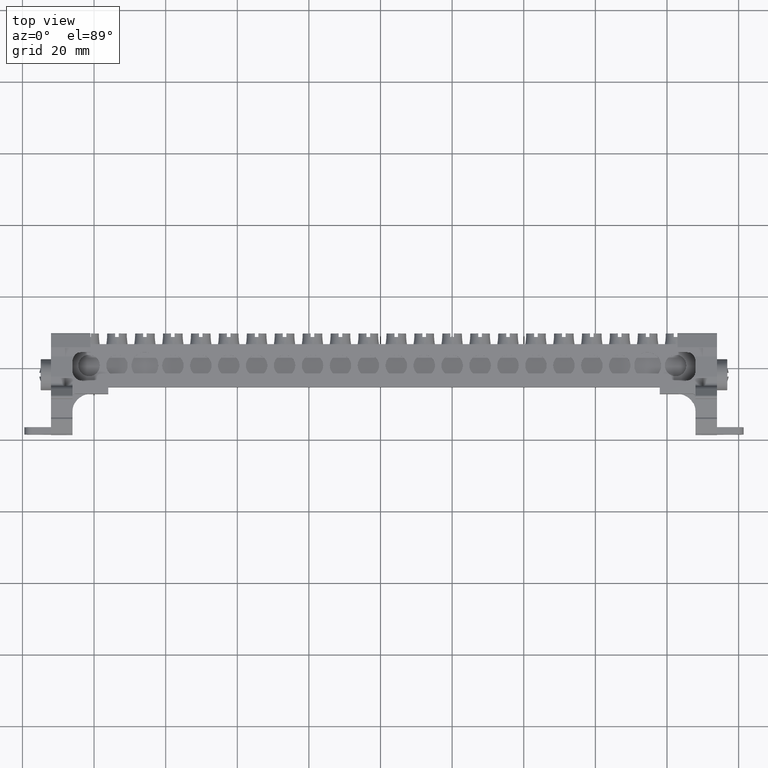
[diagram: clean part render]
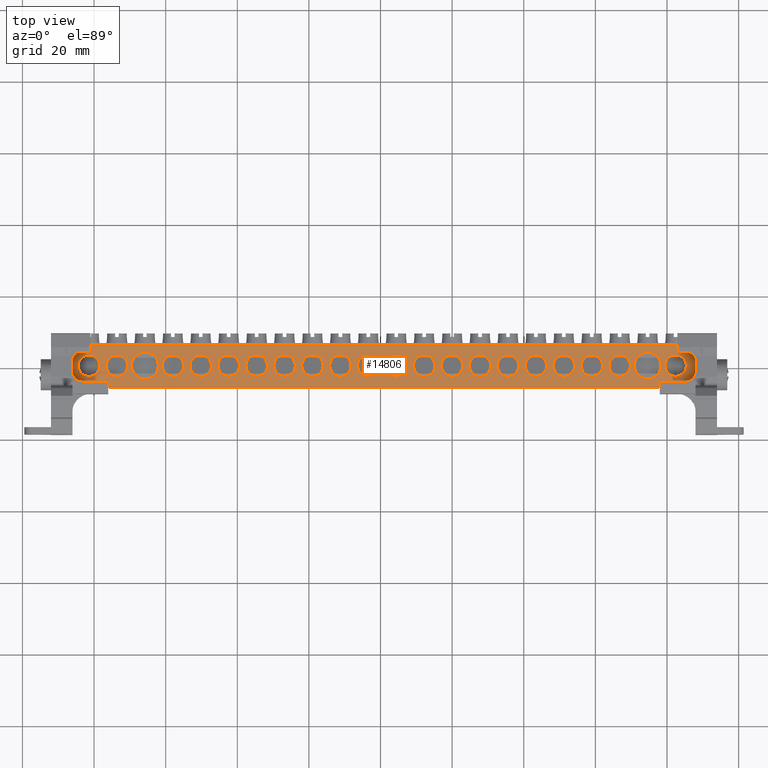
[diagram: same view with one face highlighted and labeled with its STEP entity id]
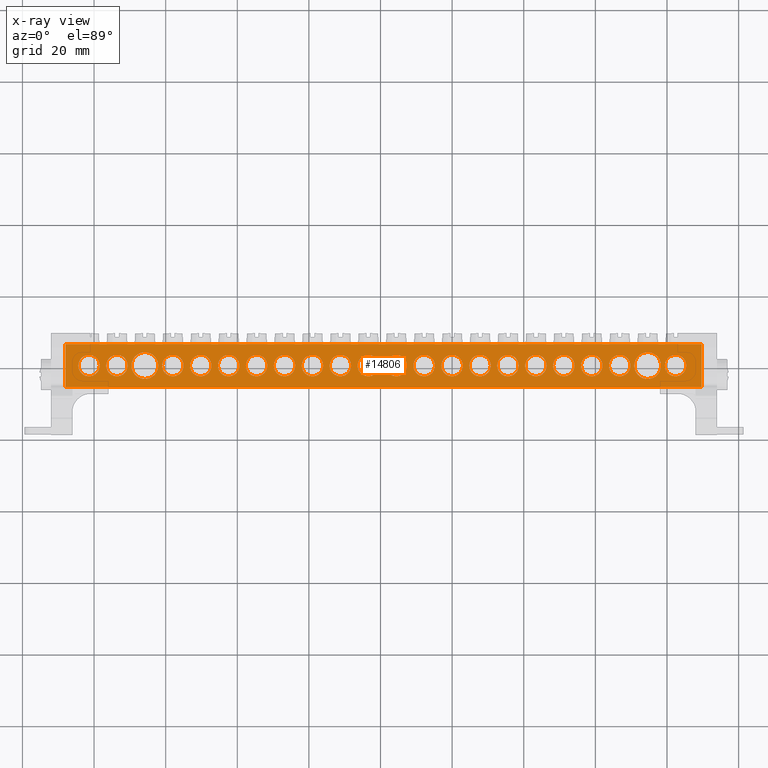
[diagram: x-ray of the same camera — body ghosted, the highlighted face saturated]
A machine part, top view. The second image highlights one B-rep face of the part: STEP entity #14806.
The next image is the same camera in x-ray: the body ghosted, the highlighted face saturated — about 0% of this face is hidden behind the body in this view.
In plain terms, the highlighted planar face has unit normal (0, 0, -1).
Its self-contained STEP definition (entity closure, byte-faithful):
#2279 = EDGE_LOOP ( 'NONE', ( #16498, #16490 ) ) ;
#2281 = EDGE_LOOP ( 'NONE', ( #16513, #16504 ) ) ;
#2284 = EDGE_LOOP ( 'NONE', ( #16525, #16521 ) ) ;
#2286 = EDGE_LOOP ( 'NONE', ( #16435, #16483 ) ) ;
#2288 = EDGE_LOOP ( 'NONE', ( #16488, #16503 ) ) ;
#2290 = EDGE_LOOP ( 'NONE', ( #16477, #16496 ) ) ;
#2291 = EDGE_LOOP ( 'NONE', ( #16546, #16491, #16533, #16518, #16538, #16515, #16523, #16520 ) ) ;
#2292 = EDGE_LOOP ( 'NONE', ( #16499, #16437 ) ) ;
#2294 = EDGE_LOOP ( 'NONE', ( #16508, #16516 ) ) ;
#2297 = EDGE_LOOP ( 'NONE', ( #16436, #16438 ) ) ;
#2300 = EDGE_LOOP ( 'NONE', ( #16442, #16475 ) ) ;
#2301 = EDGE_LOOP ( 'NONE', ( #16489, #16553 ) ) ;
#2302 = EDGE_LOOP ( 'NONE', ( #16507, #16541 ) ) ;
#2305 = EDGE_LOOP ( 'NONE', ( #16497, #16485 ) ) ;
#2320 = EDGE_LOOP ( 'NONE', ( #16456, #16505 ) ) ;
#2322 = EDGE_LOOP ( 'NONE', ( #16487, #16532 ) ) ;
#2324 = EDGE_LOOP ( 'NONE', ( #16534, #16444 ) ) ;
#2325 = EDGE_LOOP ( 'NONE', ( #16480, #16540 ) ) ;
#2328 = EDGE_LOOP ( 'NONE', ( #16439, #16528 ) ) ;
#2329 = EDGE_LOOP ( 'NONE', ( #16502, #16517 ) ) ;
#2330 = EDGE_LOOP ( 'NONE', ( #16506, #16484 ) ) ;
#2332 = EDGE_LOOP ( 'NONE', ( #16470, #16539 ) ) ;
#2334 = EDGE_LOOP ( 'NONE', ( #16527, #16492 ) ) ;
#3349 = FACE_BOUND ( 'NONE', #2329, .T. ) ;
#3350 = FACE_BOUND ( 'NONE', #2292, .T. ) ;
#3354 = FACE_BOUND ( 'NONE', #2325, .T. ) ;
#3355 = FACE_BOUND ( 'NONE', #2320, .T. ) ;
#3357 = FACE_BOUND ( 'NONE', #2305, .T. ) ;
#3359 = FACE_BOUND ( 'NONE', #2284, .T. ) ;
#3363 = DIRECTION ( 'NONE',  ( 0.0000000000000000000, 0.0000000000000000000, -1.000000000000000000 ) ) ;
#3366 = FACE_BOUND ( 'NONE', #2294, .T. ) ;
#3368 = FACE_BOUND ( 'NONE', #2301, .T. ) ;
#3370 = FACE_BOUND ( 'NONE', #2288, .T. ) ;
#3389 = FACE_BOUND ( 'NONE', #2332, .T. ) ;
#3390 = FACE_BOUND ( 'NONE', #2281, .T. ) ;
#3392 = FACE_BOUND ( 'NONE', #2286, .T. ) ;
#3394 = CARTESIAN_POINT ( 'NONE',  ( -90.10539649368639900, -33.46391012921964900, 99.25723811290720300 ) ) ;
#3399 = FACE_BOUND ( 'NONE', #2290, .T. ) ;
#3402 = FACE_BOUND ( 'NONE', #2279, .T. ) ;
#3404 = FACE_BOUND ( 'NONE', #2302, .T. ) ;
#3411 = FACE_BOUND ( 'NONE', #2300, .T. ) ;
#3418 = FACE_BOUND ( 'NONE', #2328, .T. ) ;
#3420 = FACE_BOUND ( 'NONE', #2330, .T. ) ;
#3421 = FACE_BOUND ( 'NONE', #2334, .T. ) ;
#3424 = FACE_BOUND ( 'NONE', #2324, .T. ) ;
#3426 = DIRECTION ( 'NONE',  ( -1.000000000000000000, 0.0000000000000000000, -0.0000000000000000000 ) ) ;
#3430 = FACE_BOUND ( 'NONE', #2322, .T. ) ;
#3432 = FACE_BOUND ( 'NONE', #2297, .T. ) ;
#3433 = PLANE ( 'NONE',  #29792 ) ;
#3437 = FACE_OUTER_BOUND ( 'NONE', #2291, .T. ) ;
#4094 = DIRECTION ( 'NONE',  ( 0.0000000000000000000, 0.0000000000000000000, 1.000000000000000000 ) ) ;
#4099 = CARTESIAN_POINT ( 'NONE',  ( -201.4053964936864200, -39.46391012921964900, 99.25723811290720300 ) ) ;
#4123 = DIRECTION ( 'NONE',  ( 1.000000000000000000, 0.0000000000000000000, 0.0000000000000000000 ) ) ;
#4130 = CARTESIAN_POINT ( 'NONE',  ( -68.80539649368640200, -39.46391012921964900, 99.25723811290720300 ) ) ;
#4134 = CARTESIAN_POINT ( 'NONE',  ( -193.6053964936864100, -39.46391012921964900, 99.25723811290720300 ) ) ;
#4138 = DIRECTION ( 'NONE',  ( -1.000000000000000000, 0.0000000000000000000, 0.0000000000000000000 ) ) ;
#4142 = DIRECTION ( 'NONE',  ( 0.0000000000000000000, 0.0000000000000000000, 1.000000000000000000 ) ) ;
#4154 = DIRECTION ( 'NONE',  ( 0.0000000000000000000, 0.0000000000000000000, 1.000000000000000000 ) ) ;
#4178 = DIRECTION ( 'NONE',  ( 1.000000000000000000, 0.0000000000000000000, 0.0000000000000000000 ) ) ;
#4283 = DIRECTION ( 'NONE',  ( 0.0000000000000000000, 0.0000000000000000000, 1.000000000000000000 ) ) ;
#4303 = CARTESIAN_POINT ( 'NONE',  ( -185.8053964936863700, -39.46391012921964900, 99.25723811290720300 ) ) ;
#4322 = CARTESIAN_POINT ( 'NONE',  ( -45.40539649368639600, -39.46391012921964900, 99.25723811290720300 ) ) ;
#4328 = DIRECTION ( 'NONE',  ( 0.0000000000000000000, 0.0000000000000000000, 1.000000000000000000 ) ) ;
#4333 = DIRECTION ( 'NONE',  ( 1.000000000000000000, 0.0000000000000000000, 0.0000000000000000000 ) ) ;
#4341 = DIRECTION ( 'NONE',  ( 1.000000000000000000, 0.0000000000000000000, 0.0000000000000000000 ) ) ;
#4352 = DIRECTION ( 'NONE',  ( 0.0000000000000000000, 0.0000000000000000000, 1.000000000000000000 ) ) ;
#4373 = CARTESIAN_POINT ( 'NONE',  ( -61.00539649368639800, -39.46391012921964900, 99.25723811290720300 ) ) ;
#4403 = DIRECTION ( 'NONE',  ( 0.0000000000000000000, 0.0000000000000000000, 1.000000000000000000 ) ) ;
#4405 = DIRECTION ( 'NONE',  ( -1.000000000000000000, 0.0000000000000000000, 0.0000000000000000000 ) ) ;
#4408 = CARTESIAN_POINT ( 'NONE',  ( -178.0053964936864500, -39.46391012921964900, 99.25723811290720300 ) ) ;
#4410 = DIRECTION ( 'NONE',  ( 0.0000000000000000000, 0.0000000000000000000, 1.000000000000000000 ) ) ;
#4412 = DIRECTION ( 'NONE',  ( 1.000000000000000000, 0.0000000000000000000, 0.0000000000000000000 ) ) ;
#4425 = CARTESIAN_POINT ( 'NONE',  ( -37.60539649368644200, -39.46391012921964900, 99.25723811290720300 ) ) ;
#4444 = DIRECTION ( 'NONE',  ( -1.000000000000000000, 0.0000000000000000000, 0.0000000000000000000 ) ) ;
#5112 = EDGE_CURVE ( 'NONE', #6999, #7017, #5782, .T. ) ;
#5113 = EDGE_CURVE ( 'NONE', #7057, #7065, #5812, .T. ) ;
#5114 = EDGE_CURVE ( 'NONE', #7063, #7062, #5796, .T. ) ;
#5121 = EDGE_CURVE ( 'NONE', #7166, #7116, #5853, .T. ) ;
#5122 = EDGE_CURVE ( 'NONE', #6967, #6969, #5833, .T. ) ;
#5126 = EDGE_CURVE ( 'NONE', #7124, #7112, #5839, .T. ) ;
#5128 = EDGE_CURVE ( 'NONE', #6994, #7077, #5856, .T. ) ;
#5137 = EDGE_CURVE ( 'NONE', #12282, #12367, #14393, .T. ) ;
#5144 = EDGE_CURVE ( 'NONE', #12351, #12382, #14411, .T. ) ;
#5146 = EDGE_CURVE ( 'NONE', #6992, #7003, #5849, .T. ) ;
#5152 = EDGE_CURVE ( 'NONE', #7183, #6990, #5896, .T. ) ;
#5155 = EDGE_CURVE ( 'NONE', #12398, #12351, #14433, .T. ) ;
#5156 = EDGE_CURVE ( 'NONE', #7016, #6995, #5898, .T. ) ;
#5189 = EDGE_CURVE ( 'NONE', #12349, #12283, #26841, .T. ) ;
#5782 = CIRCLE ( 'NONE', #5810, 3.000000000000002700 ) ;
#5796 = CIRCLE ( 'NONE', #5801, 3.750000000000003600 ) ;
#5801 = AXIS2_PLACEMENT_3D ( 'NONE', #14326, #14327, #14328 ) ;
#5802 = AXIS2_PLACEMENT_3D ( 'NONE', #14322, #14324, #14325 ) ;
#5810 = AXIS2_PLACEMENT_3D ( 'NONE', #14307, #14309, #14323 ) ;
#5812 = CIRCLE ( 'NONE', #5802, 3.000000000000002700 ) ;
#5824 = AXIS2_PLACEMENT_3D ( 'NONE', #14351, #14352, #14348 ) ;
#5833 = CIRCLE ( 'NONE', #5877, 3.000000000000002700 ) ;
#5839 = CIRCLE ( 'NONE', #5852, 3.000000000000002700 ) ;
#5842 = AXIS2_PLACEMENT_3D ( 'NONE', #14372, #14357, #14373 ) ;
#5849 = CIRCLE ( 'NONE', #5875, 3.000000000000002700 ) ;
#5852 = AXIS2_PLACEMENT_3D ( 'NONE', #14365, #14370, #14354 ) ;
#5853 = CIRCLE ( 'NONE', #5824, 3.000000000000002700 ) ;
#5856 = CIRCLE ( 'NONE', #5842, 3.000000000000002700 ) ;
#5858 = VECTOR ( 'NONE', #14412, 1000.000000000000000 ) ;
#5863 = VECTOR ( 'NONE', #14394, 1000.000000000000000 ) ;
#5875 = AXIS2_PLACEMENT_3D ( 'NONE', #14424, #14404, #14405 ) ;
#5877 = AXIS2_PLACEMENT_3D ( 'NONE', #14343, #14344, #14364 ) ;
#5894 = VECTOR ( 'NONE', #26835, 1000.000000000000000 ) ;
#5896 = CIRCLE ( 'NONE', #5902, 3.000000000000002700 ) ;
#5898 = CIRCLE ( 'NONE', #5908, 3.000000000000002700 ) ;
#5902 = AXIS2_PLACEMENT_3D ( 'NONE', #14459, #14449, #14452 ) ;
#5908 = AXIS2_PLACEMENT_3D ( 'NONE', #14457, #14438, #14440 ) ;
#5923 = VECTOR ( 'NONE', #14436, 1000.000000000000000 ) ;
#6927 = VERTEX_POINT ( 'NONE', #9805 ) ;
#6928 = VERTEX_POINT ( 'NONE', #9861 ) ;
#6932 = VERTEX_POINT ( 'NONE', #9827 ) ;
#6956 = VERTEX_POINT ( 'NONE', #9927 ) ;
#6966 = VERTEX_POINT ( 'NONE', #9939 ) ;
#6967 = VERTEX_POINT ( 'NONE', #9933 ) ;
#6969 = VERTEX_POINT ( 'NONE', #9914 ) ;
#6972 = VERTEX_POINT ( 'NONE', #9930 ) ;
#6978 = VERTEX_POINT ( 'NONE', #9906 ) ;
#6980 = VERTEX_POINT ( 'NONE', #9932 ) ;
#6985 = VERTEX_POINT ( 'NONE', #9938 ) ;
#6986 = VERTEX_POINT ( 'NONE', #9934 ) ;
#6988 = VERTEX_POINT ( 'NONE', #9945 ) ;
#6990 = VERTEX_POINT ( 'NONE', #9953 ) ;
#6991 = VERTEX_POINT ( 'NONE', #9917 ) ;
#6992 = VERTEX_POINT ( 'NONE', #9911 ) ;
#6994 = VERTEX_POINT ( 'NONE', #9899 ) ;
#6995 = VERTEX_POINT ( 'NONE', #9954 ) ;
#6999 = VERTEX_POINT ( 'NONE', #9956 ) ;
#7003 = VERTEX_POINT ( 'NONE', #9958 ) ;
#7016 = VERTEX_POINT ( 'NONE', #9960 ) ;
#7017 = VERTEX_POINT ( 'NONE', #9920 ) ;
#7021 = VERTEX_POINT ( 'NONE', #9896 ) ;
#7022 = VERTEX_POINT ( 'NONE', #9900 ) ;
#7029 = VERTEX_POINT ( 'NONE', #9974 ) ;
#7033 = VERTEX_POINT ( 'NONE', #9923 ) ;
#7035 = VERTEX_POINT ( 'NONE', #9926 ) ;
#7037 = VERTEX_POINT ( 'NONE', #10020 ) ;
#7046 = VERTEX_POINT ( 'NONE', #9996 ) ;
#7057 = VERTEX_POINT ( 'NONE', #10055 ) ;
#7059 = VERTEX_POINT ( 'NONE', #10058 ) ;
#7060 = VERTEX_POINT ( 'NONE', #10034 ) ;
#7062 = VERTEX_POINT ( 'NONE', #10053 ) ;
#7063 = VERTEX_POINT ( 'NONE', #10023 ) ;
#7065 = VERTEX_POINT ( 'NONE', #9981 ) ;
#7067 = VERTEX_POINT ( 'NONE', #9984 ) ;
#7077 = VERTEX_POINT ( 'NONE', #9997 ) ;
#7085 = VERTEX_POINT ( 'NONE', #10060 ) ;
#7112 = VERTEX_POINT ( 'NONE', #10056 ) ;
#7116 = VERTEX_POINT ( 'NONE', #9999 ) ;
#7124 = VERTEX_POINT ( 'NONE', #10011 ) ;
#7164 = VERTEX_POINT ( 'NONE', #10079 ) ;
#7166 = VERTEX_POINT ( 'NONE', #10076 ) ;
#7183 = VERTEX_POINT ( 'NONE', #10101 ) ;
#9805 = CARTESIAN_POINT ( 'NONE',  ( -157.6053964936863800, -39.46391012921964900, 99.25723811290720300 ) ) ;
#9827 = CARTESIAN_POINT ( 'NONE',  ( -149.8053964936864000, -39.46391012921964900, 99.25723811290720300 ) ) ;
#9861 = CARTESIAN_POINT ( 'NONE',  ( -128.2053964936864100, -39.46391012921964900, 99.25723811290720300 ) ) ;
#9896 = CARTESIAN_POINT ( 'NONE',  ( -189.5553964936863700, -39.46391012921964900, 99.25723811290720300 ) ) ;
#9899 = CARTESIAN_POINT ( 'NONE',  ( -81.40539649368641100, -39.46391012921964900, 99.25723811290720300 ) ) ;
#9900 = CARTESIAN_POINT ( 'NONE',  ( -65.80539649368640200, -39.46391012921964900, 99.25723811290720300 ) ) ;
#9906 = CARTESIAN_POINT ( 'NONE',  ( -165.4053964936864000, -39.46391012921964900, 99.25723811290720300 ) ) ;
#9911 = CARTESIAN_POINT ( 'NONE',  ( -198.4053964936864000, -39.46391012921964900, 99.25723811290720300 ) ) ;
#9914 = CARTESIAN_POINT ( 'NONE',  ( -118.6053964936864000, -39.46391012921964900, 99.25723811290720300 ) ) ;
#9917 = CARTESIAN_POINT ( 'NONE',  ( -40.60539649368644900, -39.46391012921964900, 99.25723811290720300 ) ) ;
#9920 = CARTESIAN_POINT ( 'NONE',  ( -196.6053964936864100, -39.46391012921964900, 99.25723811290720300 ) ) ;
#9923 = CARTESIAN_POINT ( 'NONE',  ( -120.4053964936864000, -39.46391012921964900, 99.25723811290720300 ) ) ;
#9926 = CARTESIAN_POINT ( 'NONE',  ( -134.2053964936864100, -39.46391012921964900, 99.25723811290720300 ) ) ;
#9927 = CARTESIAN_POINT ( 'NONE',  ( -167.2053964936863800, -39.46391012921964900, 99.25723811290720300 ) ) ;
#9930 = CARTESIAN_POINT ( 'NONE',  ( -110.8053964936864200, -39.46391012921964900, 99.25723811290720300 ) ) ;
#9932 = CARTESIAN_POINT ( 'NONE',  ( -142.0053964936863900, -39.46391012921964900, 99.25723811290720300 ) ) ;
#9933 = CARTESIAN_POINT ( 'NONE',  ( -112.6053964936864000, -39.46391012921964900, 99.25723811290720300 ) ) ;
#9934 = CARTESIAN_POINT ( 'NONE',  ( -173.2053964936863800, -39.46391012921964900, 99.25723811290720300 ) ) ;
#9938 = CARTESIAN_POINT ( 'NONE',  ( -143.8053964936864000, -39.46391012921964900, 99.25723811290720300 ) ) ;
#9939 = CARTESIAN_POINT ( 'NONE',  ( -151.6053964936863800, -39.46391012921964900, 99.25723811290720300 ) ) ;
#9945 = CARTESIAN_POINT ( 'NONE',  ( -103.0053964936863900, -39.46391012921964900, 99.25723811290720300 ) ) ;
#9953 = CARTESIAN_POINT ( 'NONE',  ( -64.00539649368640500, -39.46391012921964900, 99.25723811290720300 ) ) ;
#9954 = CARTESIAN_POINT ( 'NONE',  ( -56.20539649368640100, -39.46391012921964900, 99.25723811290720300 ) ) ;
#9956 = CARTESIAN_POINT ( 'NONE',  ( -190.6053964936864100, -39.46391012921964900, 99.25723811290720300 ) ) ;
#9958 = CARTESIAN_POINT ( 'NONE',  ( -204.4053964936864200, -39.46391012921964900, 99.25723811290720300 ) ) ;
#9960 = CARTESIAN_POINT ( 'NONE',  ( -50.20539649368639300, -39.46391012921964900, 99.25723811290720300 ) ) ;
#9974 = CARTESIAN_POINT ( 'NONE',  ( -182.0553964936863700, -39.46391012921964900, 99.25723811290720300 ) ) ;
#9981 = CARTESIAN_POINT ( 'NONE',  ( -95.20539649368639300, -39.46391012921964900, 99.25723811290720300 ) ) ;
#9984 = CARTESIAN_POINT ( 'NONE',  ( -71.80539649368640200, -39.46391012921964900, 99.25723811290720300 ) ) ;
#9996 = CARTESIAN_POINT ( 'NONE',  ( -136.0053964936863900, -39.46391012921964900, 99.25723811290720300 ) ) ;
#9997 = CARTESIAN_POINT ( 'NONE',  ( -87.40539649368642500, -39.46391012921964900, 99.25723811290720300 ) ) ;
#9999 = CARTESIAN_POINT ( 'NONE',  ( -181.0053964936864500, -39.46391012921964900, 99.25723811290720300 ) ) ;
#10011 = CARTESIAN_POINT ( 'NONE',  ( -73.60539649368639900, -39.46391012921964900, 99.25723811290720300 ) ) ;
#10020 = CARTESIAN_POINT ( 'NONE',  ( -97.00539649368639100, -39.46391012921964900, 99.25723811290720300 ) ) ;
#10023 = CARTESIAN_POINT ( 'NONE',  ( -41.65539649368639600, -39.46391012921964900, 99.25723811290720300 ) ) ;
#10034 = CARTESIAN_POINT ( 'NONE',  ( -159.4053964936864000, -39.46391012921964900, 99.25723811290720300 ) ) ;
#10053 = CARTESIAN_POINT ( 'NONE',  ( -49.15539649368640300, -39.46391012921964900, 99.25723811290720300 ) ) ;
#10055 = CARTESIAN_POINT ( 'NONE',  ( -89.20539649368639300, -39.46391012921964900, 99.25723811290720300 ) ) ;
#10056 = CARTESIAN_POINT ( 'NONE',  ( -79.60539649368639900, -39.46391012921964900, 99.25723811290720300 ) ) ;
#10058 = CARTESIAN_POINT ( 'NONE',  ( -104.8053964936864000, -39.46391012921964900, 99.25723811290720300 ) ) ;
#10060 = CARTESIAN_POINT ( 'NONE',  ( -126.4053964936864000, -39.46391012921964900, 99.25723811290720300 ) ) ;
#10076 = CARTESIAN_POINT ( 'NONE',  ( -175.0053964936864200, -39.46391012921964900, 99.25723811290720300 ) ) ;
#10079 = CARTESIAN_POINT ( 'NONE',  ( -34.60539649368644200, -39.46391012921964900, 99.25723811290720300 ) ) ;
#10101 = CARTESIAN_POINT ( 'NONE',  ( -58.00539649368639800, -39.46391012921964900, 99.25723811290720300 ) ) ;
#12282 = VERTEX_POINT ( 'NONE', #17995 ) ;
#12283 = VERTEX_POINT ( 'NONE', #17957 ) ;
#12344 = VERTEX_POINT ( 'NONE', #18018 ) ;
#12349 = VERTEX_POINT ( 'NONE', #18061 ) ;
#12351 = VERTEX_POINT ( 'NONE', #18029 ) ;
#12367 = VERTEX_POINT ( 'NONE', #18072 ) ;
#12382 = VERTEX_POINT ( 'NONE', #18041 ) ;
#12398 = VERTEX_POINT ( 'NONE', #18106 ) ;
#12741 = DIRECTION ( 'NONE',  ( -1.000000000000000000, 0.0000000000000000000, 0.0000000000000000000 ) ) ;
#12961 = CARTESIAN_POINT ( 'NONE',  ( -107.8053964936864000, -39.46391012921964900, 99.25723811290720300 ) ) ;
#13650 = DIRECTION ( 'NONE',  ( 0.0000000000000000000, 0.0000000000000000000, 1.000000000000000000 ) ) ;
#13687 = AXIS2_PLACEMENT_3D ( 'NONE', #4408, #4410, #4444 ) ;
#13692 = AXIS2_PLACEMENT_3D ( 'NONE', #4425, #4403, #4412 ) ;
#13695 = CIRCLE ( 'NONE', #13692, 3.000000000000002700 ) ;
#13777 = CIRCLE ( 'NONE', #13786, 3.000000000000002700 ) ;
#13786 = AXIS2_PLACEMENT_3D ( 'NONE', #12961, #13650, #12741 ) ;
#13811 = CIRCLE ( 'NONE', #13812, 3.000000000000002700 ) ;
#13812 = AXIS2_PLACEMENT_3D ( 'NONE', #14970, #14954, #14960 ) ;
#13813 = CIRCLE ( 'NONE', #13836, 3.000000000000002700 ) ;
#13814 = CIRCLE ( 'NONE', #13854, 3.000000000000002700 ) ;
#13821 = AXIS2_PLACEMENT_3D ( 'NONE', #14867, #14885, #14874 ) ;
#13835 = AXIS2_PLACEMENT_3D ( 'NONE', #14937, #14939, #14925 ) ;
#13836 = AXIS2_PLACEMENT_3D ( 'NONE', #14921, #14922, #14898 ) ;
#13842 = CIRCLE ( 'NONE', #13870, 3.000000000000002700 ) ;
#13852 = CIRCLE ( 'NONE', #13877, 3.000000000000002700 ) ;
#13854 = AXIS2_PLACEMENT_3D ( 'NONE', #14879, #14908, #14900 ) ;
#13867 = CIRCLE ( 'NONE', #13835, 3.000000000000002700 ) ;
#13870 = AXIS2_PLACEMENT_3D ( 'NONE', #14974, #14948, #14982 ) ;
#13872 = CIRCLE ( 'NONE', #13821, 3.000000000000002700 ) ;
#13874 = AXIS2_PLACEMENT_3D ( 'NONE', #15137, #15122, #15127 ) ;
#13877 = AXIS2_PLACEMENT_3D ( 'NONE', #14972, #15010, #14965 ) ;
#13880 = CIRCLE ( 'NONE', #13882, 3.000000000000002700 ) ;
#13882 = AXIS2_PLACEMENT_3D ( 'NONE', #14977, #14988, #14992 ) ;
#13887 = CIRCLE ( 'NONE', #13895, 3.000000000000002700 ) ;
#13893 = CIRCLE ( 'NONE', #13902, 3.000000000000002700 ) ;
#13895 = AXIS2_PLACEMENT_3D ( 'NONE', #15065, #15042, #15054 ) ;
#13898 = CIRCLE ( 'NONE', #13936, 3.000000000000002700 ) ;
#13902 = AXIS2_PLACEMENT_3D ( 'NONE', #15038, #15051, #15033 ) ;
#13927 = AXIS2_PLACEMENT_3D ( 'NONE', #15125, #15153, #15138 ) ;
#13933 = CIRCLE ( 'NONE', #13927, 3.000000000000002700 ) ;
#13936 = AXIS2_PLACEMENT_3D ( 'NONE', #14999, #14940, #14950 ) ;
#13941 = CIRCLE ( 'NONE', #13874, 3.000000000000002700 ) ;
#14217 = CIRCLE ( 'NONE', #14267, 3.000000000000002700 ) ;
#14250 = CIRCLE ( 'NONE', #14274, 3.000000000000002700 ) ;
#14254 = CIRCLE ( 'NONE', #14271, 3.000000000000002700 ) ;
#14267 = AXIS2_PLACEMENT_3D ( 'NONE', #4134, #4154, #4178 ) ;
#14269 = CIRCLE ( 'NONE', #14270, 3.750000000000003600 ) ;
#14270 = AXIS2_PLACEMENT_3D ( 'NONE', #4303, #4328, #4333 ) ;
#14271 = AXIS2_PLACEMENT_3D ( 'NONE', #4099, #4142, #4123 ) ;
#14274 = AXIS2_PLACEMENT_3D ( 'NONE', #4130, #4094, #4138 ) ;
#14280 = AXIS2_PLACEMENT_3D ( 'NONE', #4322, #4352, #4341 ) ;
#14282 = CIRCLE ( 'NONE', #14283, 3.000000000000002700 ) ;
#14283 = AXIS2_PLACEMENT_3D ( 'NONE', #4373, #4283, #4405 ) ;
#14291 = CIRCLE ( 'NONE', #14280, 3.750000000000003600 ) ;
#14299 = CIRCLE ( 'NONE', #13687, 3.000000000000002700 ) ;
#14307 = CARTESIAN_POINT ( 'NONE',  ( -193.6053964936864100, -39.46391012921964900, 99.25723811290720300 ) ) ;
#14309 = DIRECTION ( 'NONE',  ( 0.0000000000000000000, 0.0000000000000000000, 1.000000000000000000 ) ) ;
#14322 = CARTESIAN_POINT ( 'NONE',  ( -92.20539649368639300, -39.46391012921964900, 99.25723811290720300 ) ) ;
#14323 = DIRECTION ( 'NONE',  ( 1.000000000000000000, 0.0000000000000000000, 0.0000000000000000000 ) ) ;
#14324 = DIRECTION ( 'NONE',  ( 0.0000000000000000000, 0.0000000000000000000, 1.000000000000000000 ) ) ;
#14325 = DIRECTION ( 'NONE',  ( -1.000000000000000000, 0.0000000000000000000, 0.0000000000000000000 ) ) ;
#14326 = CARTESIAN_POINT ( 'NONE',  ( -45.40539649368639600, -39.46391012921964900, 99.25723811290720300 ) ) ;
#14327 = DIRECTION ( 'NONE',  ( 0.0000000000000000000, 0.0000000000000000000, 1.000000000000000000 ) ) ;
#14328 = DIRECTION ( 'NONE',  ( 1.000000000000000000, 0.0000000000000000000, 0.0000000000000000000 ) ) ;
#14343 = CARTESIAN_POINT ( 'NONE',  ( -115.6053964936864000, -39.46391012921964900, 99.25723811290720300 ) ) ;
#14344 = DIRECTION ( 'NONE',  ( 0.0000000000000000000, 0.0000000000000000000, 1.000000000000000000 ) ) ;
#14348 = DIRECTION ( 'NONE',  ( -1.000000000000000000, 0.0000000000000000000, 0.0000000000000000000 ) ) ;
#14351 = CARTESIAN_POINT ( 'NONE',  ( -178.0053964936864500, -39.46391012921964900, 99.25723811290720300 ) ) ;
#14352 = DIRECTION ( 'NONE',  ( 0.0000000000000000000, 0.0000000000000000000, 1.000000000000000000 ) ) ;
#14354 = DIRECTION ( 'NONE',  ( -1.000000000000000000, 0.0000000000000000000, 0.0000000000000000000 ) ) ;
#14357 = DIRECTION ( 'NONE',  ( 0.0000000000000000000, 0.0000000000000000000, 1.000000000000000000 ) ) ;
#14364 = DIRECTION ( 'NONE',  ( -1.000000000000000000, 0.0000000000000000000, 0.0000000000000000000 ) ) ;
#14365 = CARTESIAN_POINT ( 'NONE',  ( -76.60539649368639900, -39.46391012921964900, 99.25723811290720300 ) ) ;
#14370 = DIRECTION ( 'NONE',  ( 0.0000000000000000000, 0.0000000000000000000, 1.000000000000000000 ) ) ;
#14372 = CARTESIAN_POINT ( 'NONE',  ( -84.40539649368642500, -39.46391012921964900, 99.25723811290720300 ) ) ;
#14373 = DIRECTION ( 'NONE',  ( -1.000000000000000000, 0.0000000000000000000, 0.0000000000000000000 ) ) ;
#14391 = CARTESIAN_POINT ( 'NONE',  ( -196.0303964936866200, -45.09798989762011700, 99.25723811290720300 ) ) ;
#14393 = LINE ( 'NONE', #14391, #5863 ) ;
#14394 = DIRECTION ( 'NONE',  ( -1.123605221868002000E-014, 1.000000000000000000, 0.0000000000000000000 ) ) ;
#14404 = DIRECTION ( 'NONE',  ( 0.0000000000000000000, 0.0000000000000000000, 1.000000000000000000 ) ) ;
#14405 = DIRECTION ( 'NONE',  ( 1.000000000000000000, 0.0000000000000000000, 0.0000000000000000000 ) ) ;
#14406 = CARTESIAN_POINT ( 'NONE',  ( -30.30539649368639500, -33.46391012921964900, 99.25723811290720300 ) ) ;
#14411 = LINE ( 'NONE', #14406, #5858 ) ;
#14412 = DIRECTION ( 'NONE',  ( -0.0000000000000000000, -1.000000000000000000, -0.0000000000000000000 ) ) ;
#14424 = CARTESIAN_POINT ( 'NONE',  ( -201.4053964936864200, -39.46391012921964900, 99.25723811290720300 ) ) ;
#14433 = LINE ( 'NONE', #14439, #5923 ) ;
#14436 = DIRECTION ( 'NONE',  ( 1.000000000000000000, -0.0000000000000000000, 0.0000000000000000000 ) ) ;
#14438 = DIRECTION ( 'NONE',  ( 0.0000000000000000000, 0.0000000000000000000, 1.000000000000000000 ) ) ;
#14439 = CARTESIAN_POINT ( 'NONE',  ( -90.10539649368639900, -33.46391012921964900, 99.25723811290720300 ) ) ;
#14440 = DIRECTION ( 'NONE',  ( 1.000000000000000000, 0.0000000000000000000, 0.0000000000000000000 ) ) ;
#14449 = DIRECTION ( 'NONE',  ( 0.0000000000000000000, 0.0000000000000000000, 1.000000000000000000 ) ) ;
#14452 = DIRECTION ( 'NONE',  ( -1.000000000000000000, 0.0000000000000000000, 0.0000000000000000000 ) ) ;
#14457 = CARTESIAN_POINT ( 'NONE',  ( -53.20539649368640100, -39.46391012921964900, 99.25723811290720300 ) ) ;
#14459 = CARTESIAN_POINT ( 'NONE',  ( -61.00539649368639800, -39.46391012921964900, 99.25723811290720300 ) ) ;
#14806 = ADVANCED_FACE ( 'NONE', ( #3389, #3390, #3418, #3402, #3355, #3354, #3399, #3411, #3359, #3421, #3392, #3424, #3420, #3357, #3366, #3430, #3370, #3368, #3350, #3432, #3404, #3349, #3437 ), #3433, .F. ) ;
#14867 = CARTESIAN_POINT ( 'NONE',  ( -53.20539649368640100, -39.46391012921964900, 99.25723811290720300 ) ) ;
#14874 = DIRECTION ( 'NONE',  ( 1.000000000000000000, 0.0000000000000000000, 0.0000000000000000000 ) ) ;
#14879 = CARTESIAN_POINT ( 'NONE',  ( -162.4053964936864000, -39.46391012921964900, 99.25723811290720300 ) ) ;
#14885 = DIRECTION ( 'NONE',  ( 0.0000000000000000000, 0.0000000000000000000, 1.000000000000000000 ) ) ;
#14898 = DIRECTION ( 'NONE',  ( -1.000000000000000000, 0.0000000000000000000, 0.0000000000000000000 ) ) ;
#14900 = DIRECTION ( 'NONE',  ( -1.000000000000000000, 0.0000000000000000000, 0.0000000000000000000 ) ) ;
#14908 = DIRECTION ( 'NONE',  ( 0.0000000000000000000, 0.0000000000000000000, 1.000000000000000000 ) ) ;
#14921 = CARTESIAN_POINT ( 'NONE',  ( -123.4053964936864000, -39.46391012921964900, 99.25723811290720300 ) ) ;
#14922 = DIRECTION ( 'NONE',  ( 0.0000000000000000000, 0.0000000000000000000, 1.000000000000000000 ) ) ;
#14925 = DIRECTION ( 'NONE',  ( -1.000000000000000000, 0.0000000000000000000, 0.0000000000000000000 ) ) ;
#14937 = CARTESIAN_POINT ( 'NONE',  ( -146.8053964936864000, -39.46391012921964900, 99.25723811290720300 ) ) ;
#14939 = DIRECTION ( 'NONE',  ( 0.0000000000000000000, 0.0000000000000000000, 1.000000000000000000 ) ) ;
#14940 = DIRECTION ( 'NONE',  ( 0.0000000000000000000, 0.0000000000000000000, 1.000000000000000000 ) ) ;
#14948 = DIRECTION ( 'NONE',  ( 0.0000000000000000000, 0.0000000000000000000, 1.000000000000000000 ) ) ;
#14950 = DIRECTION ( 'NONE',  ( -1.000000000000000000, 0.0000000000000000000, 0.0000000000000000000 ) ) ;
#14954 = DIRECTION ( 'NONE',  ( 0.0000000000000000000, 0.0000000000000000000, 1.000000000000000000 ) ) ;
#14960 = DIRECTION ( 'NONE',  ( -1.000000000000000000, 0.0000000000000000000, 0.0000000000000000000 ) ) ;
#14965 = DIRECTION ( 'NONE',  ( -1.000000000000000000, 0.0000000000000000000, 0.0000000000000000000 ) ) ;
#14970 = CARTESIAN_POINT ( 'NONE',  ( -139.0053964936863900, -39.46391012921964900, 99.25723811290720300 ) ) ;
#14972 = CARTESIAN_POINT ( 'NONE',  ( -170.2053964936863800, -39.46391012921964900, 99.25723811290720300 ) ) ;
#14974 = CARTESIAN_POINT ( 'NONE',  ( -100.0053964936863900, -39.46391012921964900, 99.25723811290720300 ) ) ;
#14977 = CARTESIAN_POINT ( 'NONE',  ( -131.2053964936864100, -39.46391012921964900, 99.25723811290720300 ) ) ;
#14982 = DIRECTION ( 'NONE',  ( -1.000000000000000000, 0.0000000000000000000, 0.0000000000000000000 ) ) ;
#14988 = DIRECTION ( 'NONE',  ( 0.0000000000000000000, 0.0000000000000000000, 1.000000000000000000 ) ) ;
#14992 = DIRECTION ( 'NONE',  ( -1.000000000000000000, 0.0000000000000000000, 0.0000000000000000000 ) ) ;
#14999 = CARTESIAN_POINT ( 'NONE',  ( -115.6053964936864000, -39.46391012921964900, 99.25723811290720300 ) ) ;
#15010 = DIRECTION ( 'NONE',  ( 0.0000000000000000000, 0.0000000000000000000, 1.000000000000000000 ) ) ;
#15033 = DIRECTION ( 'NONE',  ( -1.000000000000000000, 0.0000000000000000000, 0.0000000000000000000 ) ) ;
#15038 = CARTESIAN_POINT ( 'NONE',  ( -84.40539649368642500, -39.46391012921964900, 99.25723811290720300 ) ) ;
#15042 = DIRECTION ( 'NONE',  ( 0.0000000000000000000, 0.0000000000000000000, 1.000000000000000000 ) ) ;
#15051 = DIRECTION ( 'NONE',  ( 0.0000000000000000000, 0.0000000000000000000, 1.000000000000000000 ) ) ;
#15054 = DIRECTION ( 'NONE',  ( -1.000000000000000000, 0.0000000000000000000, 0.0000000000000000000 ) ) ;
#15065 = CARTESIAN_POINT ( 'NONE',  ( -92.20539649368639300, -39.46391012921964900, 99.25723811290720300 ) ) ;
#15122 = DIRECTION ( 'NONE',  ( 0.0000000000000000000, 0.0000000000000000000, 1.000000000000000000 ) ) ;
#15125 = CARTESIAN_POINT ( 'NONE',  ( -76.60539649368639900, -39.46391012921964900, 99.25723811290720300 ) ) ;
#15127 = DIRECTION ( 'NONE',  ( -1.000000000000000000, 0.0000000000000000000, 0.0000000000000000000 ) ) ;
#15137 = CARTESIAN_POINT ( 'NONE',  ( -154.6053964936863800, -39.46391012921964900, 99.25723811290720300 ) ) ;
#15138 = DIRECTION ( 'NONE',  ( -1.000000000000000000, 0.0000000000000000000, 0.0000000000000000000 ) ) ;
#15153 = DIRECTION ( 'NONE',  ( 0.0000000000000000000, 0.0000000000000000000, 1.000000000000000000 ) ) ;
#16435 = ORIENTED_EDGE ( 'NONE', *, *, #22666, .F. ) ;
#16436 = ORIENTED_EDGE ( 'NONE', *, *, #5112, .F. ) ;
#16437 = ORIENTED_EDGE ( 'NONE', *, *, #21724, .F. ) ;
#16438 = ORIENTED_EDGE ( 'NONE', *, *, #21655, .F. ) ;
#16439 = ORIENTED_EDGE ( 'NONE', *, *, #22700, .F. ) ;
#16442 = ORIENTED_EDGE ( 'NONE', *, *, #22655, .F. ) ;
#16444 = ORIENTED_EDGE ( 'NONE', *, *, #5128, .F. ) ;
#16456 = ORIENTED_EDGE ( 'NONE', *, *, #22641, .F. ) ;
#16470 = ORIENTED_EDGE ( 'NONE', *, *, #22648, .F. ) ;
#16475 = ORIENTED_EDGE ( 'NONE', *, *, #5122, .F. ) ;
#16477 = ORIENTED_EDGE ( 'NONE', *, *, #22627, .F. ) ;
#16480 = ORIENTED_EDGE ( 'NONE', *, *, #22653, .F. ) ;
#16483 = ORIENTED_EDGE ( 'NONE', *, *, #5113, .F. ) ;
#16484 = ORIENTED_EDGE ( 'NONE', *, *, #5126, .F. ) ;
#16485 = ORIENTED_EDGE ( 'NONE', *, *, #22629, .F. ) ;
#16487 = ORIENTED_EDGE ( 'NONE', *, *, #16981, .F. ) ;
#16488 = ORIENTED_EDGE ( 'NONE', *, *, #21748, .F. ) ;
#16489 = ORIENTED_EDGE ( 'NONE', *, *, #21657, .F. ) ;
#16490 = ORIENTED_EDGE ( 'NONE', *, *, #16959, .F. ) ;
#16491 = ORIENTED_EDGE ( 'NONE', *, *, #16962, .F. ) ;
#16492 = ORIENTED_EDGE ( 'NONE', *, *, #16952, .F. ) ;
#16496 = ORIENTED_EDGE ( 'NONE', *, *, #16969, .F. ) ;
#16497 = ORIENTED_EDGE ( 'NONE', *, *, #5156, .F. ) ;
#16498 = ORIENTED_EDGE ( 'NONE', *, *, #22621, .F. ) ;
#16499 = ORIENTED_EDGE ( 'NONE', *, *, #16953, .F. ) ;
#16502 = ORIENTED_EDGE ( 'NONE', *, *, #21775, .F. ) ;
#16503 = ORIENTED_EDGE ( 'NONE', *, *, #5152, .F. ) ;
#16504 = ORIENTED_EDGE ( 'NONE', *, *, #16961, .F. ) ;
#16505 = ORIENTED_EDGE ( 'NONE', *, *, #16949, .F. ) ;
#16506 = ORIENTED_EDGE ( 'NONE', *, *, #22682, .F. ) ;
#16507 = ORIENTED_EDGE ( 'NONE', *, *, #5146, .F. ) ;
#16508 = ORIENTED_EDGE ( 'NONE', *, *, #5114, .F. ) ;
#16513 = ORIENTED_EDGE ( 'NONE', *, *, #22608, .F. ) ;
#16515 = ORIENTED_EDGE ( 'NONE', *, *, #5155, .F. ) ;
#16516 = ORIENTED_EDGE ( 'NONE', *, *, #21741, .F. ) ;
#16517 = ORIENTED_EDGE ( 'NONE', *, *, #5121, .F. ) ;
#16518 = ORIENTED_EDGE ( 'NONE', *, *, #16946, .F. ) ;
#16520 = ORIENTED_EDGE ( 'NONE', *, *, #16967, .F. ) ;
#16521 = ORIENTED_EDGE ( 'NONE', *, *, #16963, .F. ) ;
#16523 = ORIENTED_EDGE ( 'NONE', *, *, #16971, .F. ) ;
#16525 = ORIENTED_EDGE ( 'NONE', *, *, #22601, .F. ) ;
#16527 = ORIENTED_EDGE ( 'NONE', *, *, #22635, .F. ) ;
#16528 = ORIENTED_EDGE ( 'NONE', *, *, #16976, .F. ) ;
#16532 = ORIENTED_EDGE ( 'NONE', *, *, #21779, .F. ) ;
#16533 = ORIENTED_EDGE ( 'NONE', *, *, #5189, .F. ) ;
#16534 = ORIENTED_EDGE ( 'NONE', *, *, #22663, .F. ) ;
#16538 = ORIENTED_EDGE ( 'NONE', *, *, #5144, .F. ) ;
#16539 = ORIENTED_EDGE ( 'NONE', *, *, #16950, .F. ) ;
#16540 = ORIENTED_EDGE ( 'NONE', *, *, #16940, .F. ) ;
#16541 = ORIENTED_EDGE ( 'NONE', *, *, #21671, .F. ) ;
#16546 = ORIENTED_EDGE ( 'NONE', *, *, #5137, .F. ) ;
#16553 = ORIENTED_EDGE ( 'NONE', *, *, #16944, .F. ) ;
#16940 = EDGE_CURVE ( 'NONE', #6928, #7035, #30358, .T. ) ;
#16944 = EDGE_CURVE ( 'NONE', #7022, #7067, #30377, .T. ) ;
#16946 = EDGE_CURVE ( 'NONE', #12382, #12349, #20581, .T. ) ;
#16949 = EDGE_CURVE ( 'NONE', #7046, #6980, #30324, .T. ) ;
#16950 = EDGE_CURVE ( 'NONE', #6956, #6986, #30337, .T. ) ;
#16952 = EDGE_CURVE ( 'NONE', #7037, #6988, #30371, .T. ) ;
#16953 = EDGE_CURVE ( 'NONE', #7029, #7021, #30374, .T. ) ;
#16959 = EDGE_CURVE ( 'NONE', #6985, #6932, #30349, .T. ) ;
#16961 = EDGE_CURVE ( 'NONE', #7060, #6978, #30355, .T. ) ;
#16962 = EDGE_CURVE ( 'NONE', #12283, #12282, #20620, .T. ) ;
#16963 = EDGE_CURVE ( 'NONE', #7059, #6972, #30353, .T. ) ;
#16967 = EDGE_CURVE ( 'NONE', #12367, #12344, #20634, .T. ) ;
#16969 = EDGE_CURVE ( 'NONE', #7033, #7085, #30343, .T. ) ;
#16971 = EDGE_CURVE ( 'NONE', #12344, #12398, #20682, .T. ) ;
#16976 = EDGE_CURVE ( 'NONE', #6966, #6927, #30357, .T. ) ;
#16981 = EDGE_CURVE ( 'NONE', #7164, #6991, #30383, .T. ) ;
#17957 = CARTESIAN_POINT ( 'NONE',  ( -42.03039649368587000, -45.46391012921959900, 99.25723811290720300 ) ) ;
#17995 = CARTESIAN_POINT ( 'NONE',  ( -196.0303964936866200, -45.46391012921959900, 99.25723811290720300 ) ) ;
#18018 = CARTESIAN_POINT ( 'NONE',  ( -208.0553964936864000, -45.45958989762081600, 99.25723811290720300 ) ) ;
#18029 = CARTESIAN_POINT ( 'NONE',  ( -30.30539649368639800, -33.46391012921964900, 99.25723811290720300 ) ) ;
#18041 = CARTESIAN_POINT ( 'NONE',  ( -30.30539649368639500, -45.45958989761887600, 99.25723811290720300 ) ) ;
#18061 = CARTESIAN_POINT ( 'NONE',  ( -42.03039649368587000, -45.45958989761917500, 99.25723811290720300 ) ) ;
#18072 = CARTESIAN_POINT ( 'NONE',  ( -196.0303964936866200, -45.45958989762089400, 99.25723811290720300 ) ) ;
#18106 = CARTESIAN_POINT ( 'NONE',  ( -208.0553964936864000, -33.46391012921964900, 99.25723811290720300 ) ) ;
#20573 = DIRECTION ( 'NONE',  ( -1.000000000000000000, 0.0000000000000000000, 0.0000000000000000000 ) ) ;
#20574 = DIRECTION ( 'NONE',  ( 0.0000000000000000000, 0.0000000000000000000, 1.000000000000000000 ) ) ;
#20577 = DIRECTION ( 'NONE',  ( -1.000000000000000000, 0.0000000000000000000, -0.0000000000000000000 ) ) ;
#20578 = CARTESIAN_POINT ( 'NONE',  ( -139.0053964936863900, -39.46391012921964900, 99.25723811290720300 ) ) ;
#20579 = DIRECTION ( 'NONE',  ( -1.000000000000000000, 0.0000000000000000000, 0.0000000000000000000 ) ) ;
#20580 = CARTESIAN_POINT ( 'NONE',  ( -100.0053964936863900, -39.46391012921964900, 99.25723811290720300 ) ) ;
#20581 = LINE ( 'NONE', #20588, #30367 ) ;
#20582 = DIRECTION ( 'NONE',  ( 0.0000000000000000000, 0.0000000000000000000, 1.000000000000000000 ) ) ;
#20583 = CARTESIAN_POINT ( 'NONE',  ( -131.2053964936864100, -39.46391012921964900, 99.25723811290720300 ) ) ;
#20586 = DIRECTION ( 'NONE',  ( -1.000000000000000000, 0.0000000000000000000, 0.0000000000000000000 ) ) ;
#20588 = CARTESIAN_POINT ( 'NONE',  ( -90.10539649368639900, -45.45958989761909000, 99.25723811290720300 ) ) ;
#20591 = CARTESIAN_POINT ( 'NONE',  ( -185.8053964936863700, -39.46391012921964900, 99.25723811290720300 ) ) ;
#20592 = DIRECTION ( 'NONE',  ( 0.0000000000000000000, 0.0000000000000000000, 1.000000000000000000 ) ) ;
#20596 = DIRECTION ( 'NONE',  ( 0.0000000000000000000, 0.0000000000000000000, 1.000000000000000000 ) ) ;
#20602 = DIRECTION ( 'NONE',  ( -1.000000000000000000, 0.0000000000000000000, 0.0000000000000000000 ) ) ;
#20606 = DIRECTION ( 'NONE',  ( 0.0000000000000000000, 0.0000000000000000000, 1.000000000000000000 ) ) ;
#20608 = CARTESIAN_POINT ( 'NONE',  ( -68.80539649368640200, -39.46391012921964900, 99.25723811290720300 ) ) ;
#20610 = CARTESIAN_POINT ( 'NONE',  ( -170.2053964936863800, -39.46391012921964900, 99.25723811290720300 ) ) ;
#20611 = DIRECTION ( 'NONE',  ( -1.000000000000000000, 0.0000000000000000000, 0.0000000000000000000 ) ) ;
#20613 = DIRECTION ( 'NONE',  ( 0.0000000000000000000, 0.0000000000000000000, 1.000000000000000000 ) ) ;
#20620 = LINE ( 'NONE', #20623, #30329 ) ;
#20621 = DIRECTION ( 'NONE',  ( -1.000000000000000000, 0.0000000000000000000, 0.0000000000000000000 ) ) ;
#20622 = DIRECTION ( 'NONE',  ( 1.000000000000000000, 0.0000000000000000000, 0.0000000000000000000 ) ) ;
#20623 = CARTESIAN_POINT ( 'NONE',  ( -90.10539649368639900, -45.46391012921959900, 99.25723811290720300 ) ) ;
#20627 = DIRECTION ( 'NONE',  ( -1.000000000000000000, 0.0000000000000000000, -0.0000000000000000000 ) ) ;
#20628 = DIRECTION ( 'NONE',  ( 0.0000000000000000000, 0.0000000000000000000, 1.000000000000000000 ) ) ;
#20629 = CARTESIAN_POINT ( 'NONE',  ( -107.8053964936864000, -39.46391012921964900, 99.25723811290720300 ) ) ;
#20634 = LINE ( 'NONE', #20652, #30338 ) ;
#20636 = DIRECTION ( 'NONE',  ( -1.000000000000000000, 0.0000000000000000000, 0.0000000000000000000 ) ) ;
#20642 = DIRECTION ( 'NONE',  ( 0.0000000000000000000, 0.0000000000000000000, 1.000000000000000000 ) ) ;
#20644 = CARTESIAN_POINT ( 'NONE',  ( -162.4053964936864000, -39.46391012921964900, 99.25723811290720300 ) ) ;
#20648 = CARTESIAN_POINT ( 'NONE',  ( -146.8053964936864000, -39.46391012921964900, 99.25723811290720300 ) ) ;
#20652 = CARTESIAN_POINT ( 'NONE',  ( -90.10539649368639900, -45.45958989762089400, 99.25723811290720300 ) ) ;
#20653 = DIRECTION ( 'NONE',  ( 0.0000000000000000000, 0.0000000000000000000, 1.000000000000000000 ) ) ;
#20654 = DIRECTION ( 'NONE',  ( -1.000000000000000000, 0.0000000000000000000, -0.0000000000000000000 ) ) ;
#20656 = DIRECTION ( 'NONE',  ( -1.000000000000000000, 0.0000000000000000000, 0.0000000000000000000 ) ) ;
#20668 = DIRECTION ( 'NONE',  ( 0.0000000000000000000, 0.0000000000000000000, 1.000000000000000000 ) ) ;
#20671 = DIRECTION ( 'NONE',  ( -1.000000000000000000, 0.0000000000000000000, 0.0000000000000000000 ) ) ;
#20675 = CARTESIAN_POINT ( 'NONE',  ( -208.0553964936864000, -33.46391012921964900, 99.25723811290720300 ) ) ;
#20677 = DIRECTION ( 'NONE',  ( 0.0000000000000000000, 1.000000000000000000, 0.0000000000000000000 ) ) ;
#20681 = CARTESIAN_POINT ( 'NONE',  ( -37.60539649368644200, -39.46391012921964900, 99.25723811290720300 ) ) ;
#20682 = LINE ( 'NONE', #20675, #30360 ) ;
#20685 = CARTESIAN_POINT ( 'NONE',  ( -123.4053964936864000, -39.46391012921964900, 99.25723811290720300 ) ) ;
#20687 = DIRECTION ( 'NONE',  ( -1.000000000000000000, 0.0000000000000000000, 0.0000000000000000000 ) ) ;
#20692 = DIRECTION ( 'NONE',  ( 1.000000000000000000, 0.0000000000000000000, 0.0000000000000000000 ) ) ;
#20693 = DIRECTION ( 'NONE',  ( 0.0000000000000000000, 0.0000000000000000000, 1.000000000000000000 ) ) ;
#20694 = CARTESIAN_POINT ( 'NONE',  ( -154.6053964936863800, -39.46391012921964900, 99.25723811290720300 ) ) ;
#20700 = DIRECTION ( 'NONE',  ( 0.0000000000000000000, 0.0000000000000000000, 1.000000000000000000 ) ) ;
#21655 = EDGE_CURVE ( 'NONE', #7017, #6999, #14217, .T. ) ;
#21657 = EDGE_CURVE ( 'NONE', #7067, #7022, #14250, .T. ) ;
#21671 = EDGE_CURVE ( 'NONE', #7003, #6992, #14254, .T. ) ;
#21724 = EDGE_CURVE ( 'NONE', #7021, #7029, #14269, .T. ) ;
#21741 = EDGE_CURVE ( 'NONE', #7062, #7063, #14291, .T. ) ;
#21748 = EDGE_CURVE ( 'NONE', #6990, #7183, #14282, .T. ) ;
#21775 = EDGE_CURVE ( 'NONE', #7116, #7166, #14299, .T. ) ;
#21779 = EDGE_CURVE ( 'NONE', #6991, #7164, #13695, .T. ) ;
#22601 = EDGE_CURVE ( 'NONE', #6972, #7059, #13777, .T. ) ;
#22608 = EDGE_CURVE ( 'NONE', #6978, #7060, #13814, .T. ) ;
#22621 = EDGE_CURVE ( 'NONE', #6932, #6985, #13867, .T. ) ;
#22627 = EDGE_CURVE ( 'NONE', #7085, #7033, #13813, .T. ) ;
#22629 = EDGE_CURVE ( 'NONE', #6995, #7016, #13872, .T. ) ;
#22635 = EDGE_CURVE ( 'NONE', #6988, #7037, #13842, .T. ) ;
#22641 = EDGE_CURVE ( 'NONE', #6980, #7046, #13811, .T. ) ;
#22648 = EDGE_CURVE ( 'NONE', #6986, #6956, #13852, .T. ) ;
#22653 = EDGE_CURVE ( 'NONE', #7035, #6928, #13880, .T. ) ;
#22655 = EDGE_CURVE ( 'NONE', #6969, #6967, #13898, .T. ) ;
#22663 = EDGE_CURVE ( 'NONE', #7077, #6994, #13893, .T. ) ;
#22666 = EDGE_CURVE ( 'NONE', #7065, #7057, #13887, .T. ) ;
#22682 = EDGE_CURVE ( 'NONE', #7112, #7124, #13933, .T. ) ;
#22700 = EDGE_CURVE ( 'NONE', #6927, #6966, #13941, .T. ) ;
#26835 = DIRECTION ( 'NONE',  ( 1.100161628464490100E-014, -1.000000000000000000, 0.0000000000000000000 ) ) ;
#26841 = LINE ( 'NONE', #26860, #5894 ) ;
#26860 = CARTESIAN_POINT ( 'NONE',  ( -42.03039649368587000, -45.09798989761841200, 99.25723811290720300 ) ) ;
#29792 = AXIS2_PLACEMENT_3D ( 'NONE', #3394, #3363, #3426 ) ;
#30324 = CIRCLE ( 'NONE', #30351, 3.000000000000002700 ) ;
#30326 = AXIS2_PLACEMENT_3D ( 'NONE', #20608, #20596, #20573 ) ;
#30329 = VECTOR ( 'NONE', #20627, 1000.000000000000000 ) ;
#30330 = AXIS2_PLACEMENT_3D ( 'NONE', #20685, #20668, #20687 ) ;
#30333 = AXIS2_PLACEMENT_3D ( 'NONE', #20681, #20700, #20692 ) ;
#30337 = CIRCLE ( 'NONE', #30375, 3.000000000000002700 ) ;
#30338 = VECTOR ( 'NONE', #20654, 1000.000000000000000 ) ;
#30343 = CIRCLE ( 'NONE', #30330, 3.000000000000002700 ) ;
#30349 = CIRCLE ( 'NONE', #30363, 3.000000000000002700 ) ;
#30351 = AXIS2_PLACEMENT_3D ( 'NONE', #20578, #20574, #20579 ) ;
#30353 = CIRCLE ( 'NONE', #30380, 3.000000000000002700 ) ;
#30355 = CIRCLE ( 'NONE', #30378, 3.000000000000002700 ) ;
#30357 = CIRCLE ( 'NONE', #30361, 3.000000000000002700 ) ;
#30358 = CIRCLE ( 'NONE', #30386, 3.000000000000002700 ) ;
#30360 = VECTOR ( 'NONE', #20677, 1000.000000000000000 ) ;
#30361 = AXIS2_PLACEMENT_3D ( 'NONE', #20694, #20693, #20671 ) ;
#30363 = AXIS2_PLACEMENT_3D ( 'NONE', #20648, #20653, #20621 ) ;
#30367 = VECTOR ( 'NONE', #20577, 1000.000000000000000 ) ;
#30371 = CIRCLE ( 'NONE', #30373, 3.000000000000002700 ) ;
#30373 = AXIS2_PLACEMENT_3D ( 'NONE', #20580, #20582, #20586 ) ;
#30374 = CIRCLE ( 'NONE', #30376, 3.750000000000003600 ) ;
#30375 = AXIS2_PLACEMENT_3D ( 'NONE', #20610, #20613, #20611 ) ;
#30376 = AXIS2_PLACEMENT_3D ( 'NONE', #20591, #20592, #20622 ) ;
#30377 = CIRCLE ( 'NONE', #30326, 3.000000000000002700 ) ;
#30378 = AXIS2_PLACEMENT_3D ( 'NONE', #20644, #20628, #20656 ) ;
#30380 = AXIS2_PLACEMENT_3D ( 'NONE', #20629, #20642, #20636 ) ;
#30383 = CIRCLE ( 'NONE', #30333, 3.000000000000002700 ) ;
#30386 = AXIS2_PLACEMENT_3D ( 'NONE', #20583, #20606, #20602 ) ;